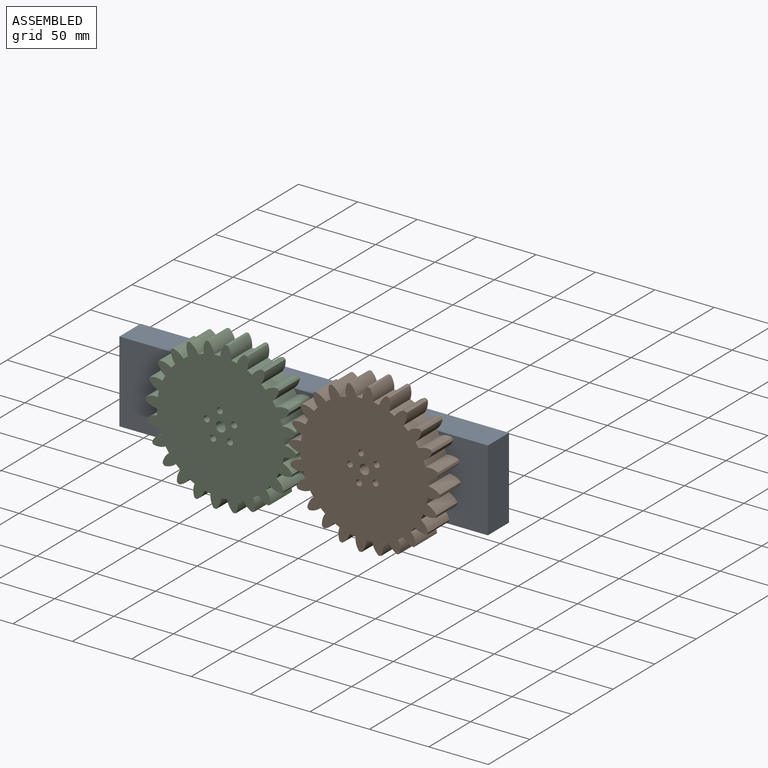
[diagram: assembled view]
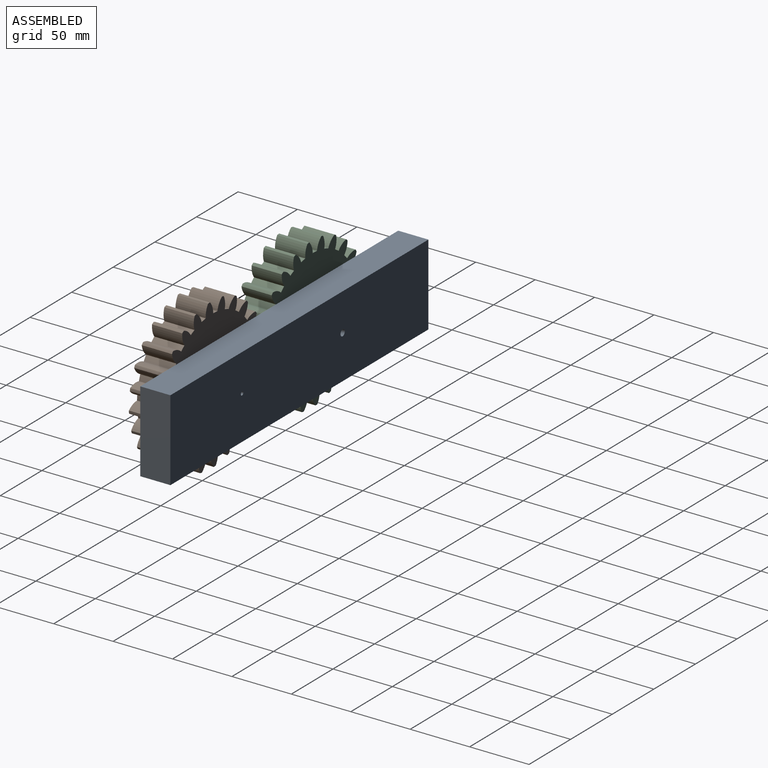
[diagram: assembled view, second angle]
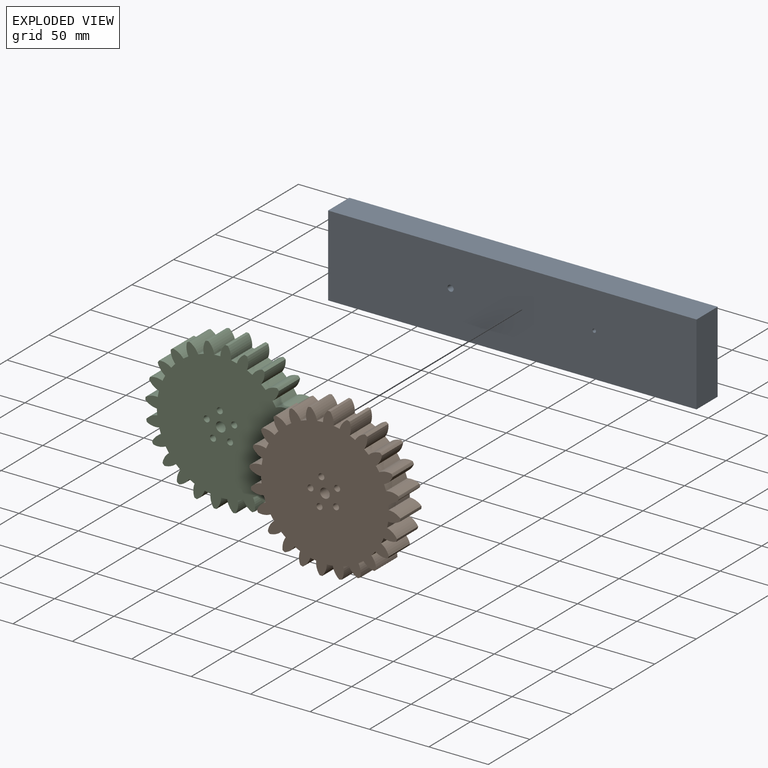
[diagram: exploded view]
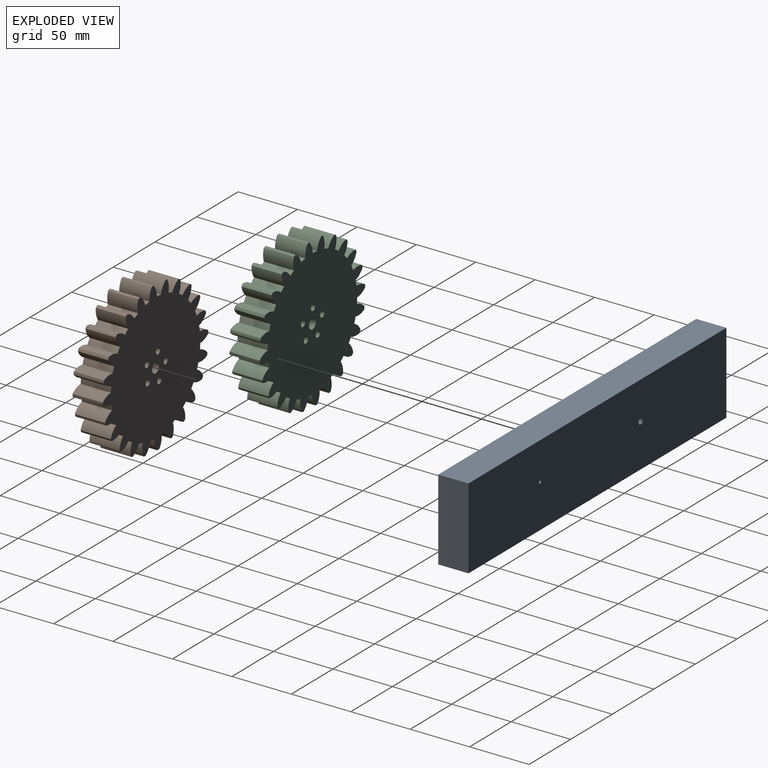
[diagram: exploded view, second angle]
ASSEMBLY  parts=3 mates=2
PART A: 8 faces, bbox 310x25.4x68.3 mm
  f0: plane 68.35x25.4mm, normal (1,0,0), area 1736mm2, adj f1,f4,f6,f7
  f1: plane 310.04x25.4mm, normal (0,0,1), area 7875.1mm2, adj f0,f2,f6,f7
  f2: plane 68.35x25.4mm, normal (-1,0,0), area 1736mm2, adj f1,f4,f6,f7
  f3: cylinder r=1.48mm len=25.4mm, axis (0,-1,0), area 236.8mm2, adj f6,f7
  f4: plane 310.04x25.4mm, normal (0,0,-1), area 7875.1mm2, adj f0,f2,f6,f7
  f5: cylinder r=2.57mm len=25.4mm, axis (0,-1,0), area 410.2mm2, adj f6,f7
  f6: plane 310.04x68.35mm, normal (0,1,0), area 21162.4mm2, adj f0,f1,f2,f3,f4,f5
  f7: plane 310.04x68.35mm, normal (0,-1,0), area 21162.4mm2, adj f0,f1,f2,f3,f4,f5
PART B: 152 faces, bbox 126.9x25.4x126.9 mm
  f0: cylinder r=14.33mm len=25.4mm, axis (0,1,0), area 129.1mm2, adj f1,f148,f150,f151
  f1: cylinder r=53.72mm len=25.4mm, axis (0,1,0), area 129.2mm2, adj f0,f2,f150,f151
  f2: cylinder r=14.33mm len=25.4mm, axis (0,1,0), area 129.1mm2, adj f1,f3,f150,f151
  f3: cylinder r=14.86mm len=25.4mm, axis (0,1,0), area 143.5mm2, adj f2,f4,f150,f151
  f4: cylinder r=10.85mm len=25.4mm, axis (0,1,0), area 59.3mm2, adj f3,f5,f150,f151
  f5: cylinder r=14.86mm len=25.4mm, axis (0,1,0), area 143.5mm2, adj f4,f6,f150,f151
  f6: cylinder r=14.33mm len=25.4mm, axis (0,1,0), area 129.1mm2, adj f5,f7,f150,f151
  f7: cylinder r=53.72mm len=25.4mm, axis (0,1,0), area 129.2mm2, adj f6,f8,f150,f151
  f8: cylinder r=14.33mm len=25.4mm, axis (0,1,0), area 129.1mm2, adj f7,f9,f150,f151
  f9: cylinder r=14.86mm len=25.4mm, axis (0,1,0), area 143.5mm2, adj f8,f10,f150,f151
  f10: cylinder r=10.85mm len=25.4mm, axis (0,1,0), area 59.3mm2, adj f9,f11,f150,f151
  f11: cylinder r=14.86mm len=25.4mm, axis (0,1,0), area 143.5mm2, adj f10,f12,f150,f151
  f12: cylinder r=14.33mm len=25.4mm, axis (0,1,0), area 129.1mm2, adj f11,f13,f150,f151
  f13: cylinder r=53.72mm len=25.4mm, axis (0,1,0), area 129.2mm2, adj f12,f14,f150,f151
  f14: cylinder r=14.33mm len=25.4mm, axis (0,1,0), area 129.1mm2, adj f13,f15,f150,f151
  f15: cylinder r=14.86mm len=25.4mm, axis (0,1,0), area 143.5mm2, adj f14,f16,f150,f151
  f16: cylinder r=10.85mm len=25.4mm, axis (0,1,0), area 59.3mm2, adj f15,f17,f150,f151
  f17: cylinder r=14.86mm len=25.4mm, axis (0,1,0), area 143.5mm2, adj f16,f18,f150,f151
  f18: cylinder r=14.33mm len=25.4mm, axis (0,1,0), area 129.1mm2, adj f17,f19,f150,f151
  f19: cylinder r=53.72mm len=25.4mm, axis (0,1,0), area 129.2mm2, adj f18,f20,f150,f151
  f20: cylinder r=14.33mm len=25.4mm, axis (0,1,0), area 129.1mm2, adj f19,f21,f150,f151
  f21: cylinder r=14.86mm len=25.4mm, axis (0,1,0), area 143.5mm2, adj f20,f22,f150,f151
  f22: cylinder r=10.85mm len=25.4mm, axis (0,1,0), area 59.3mm2, adj f21,f23,f150,f151
  f23: cylinder r=14.86mm len=25.4mm, axis (0,1,0), area 143.5mm2, adj f22,f24,f150,f151
  f24: cylinder r=14.33mm len=25.4mm, axis (0,1,0), area 129.1mm2, adj f23,f25,f150,f151
  f25: cylinder r=53.72mm len=25.4mm, axis (0,1,0), area 129.2mm2, adj f24,f26,f150,f151
  f26: cylinder r=14.33mm len=25.4mm, axis (0,1,0), area 129.1mm2, adj f25,f27,f150,f151
  f27: cylinder r=14.86mm len=25.4mm, axis (0,1,0), area 143.5mm2, adj f26,f28,f150,f151
  f28: cylinder r=10.85mm len=25.4mm, axis (0,1,0), area 59.3mm2, adj f27,f29,f150,f151
  f29: cylinder r=14.86mm len=25.4mm, axis (0,1,0), area 143.5mm2, adj f28,f30,f150,f151
  f30: cylinder r=14.33mm len=25.4mm, axis (0,1,0), area 129.1mm2, adj f29,f31,f150,f151
  f31: cylinder r=53.72mm len=25.4mm, axis (0,1,0), area 129.2mm2, adj f30,f32,f150,f151
  f32: cylinder r=14.33mm len=25.4mm, axis (0,1,0), area 129.1mm2, adj f31,f33,f150,f151
  f33: cylinder r=14.86mm len=25.4mm, axis (0,1,0), area 143.5mm2, adj f32,f34,f150,f151
  f34: cylinder r=10.85mm len=25.4mm, axis (0,1,0), area 59.3mm2, adj f33,f35,f150,f151
  f35: cylinder r=14.86mm len=25.4mm, axis (0,1,0), area 143.5mm2, adj f34,f36,f150,f151
  f36: cylinder r=14.33mm len=25.4mm, axis (0,1,0), area 129.1mm2, adj f35,f37,f150,f151
  f37: cylinder r=53.72mm len=25.4mm, axis (0,1,0), area 129.2mm2, adj f36,f38,f150,f151
  f38: cylinder r=14.33mm len=25.4mm, axis (0,1,0), area 129.1mm2, adj f37,f39,f150,f151
  f39: cylinder r=14.86mm len=25.4mm, axis (0,1,0), area 143.5mm2, adj f38,f40,f150,f151
  f40: cylinder r=10.85mm len=25.4mm, axis (0,1,0), area 59.3mm2, adj f39,f41,f150,f151
  f41: cylinder r=14.86mm len=25.4mm, axis (0,1,0), area 143.5mm2, adj f40,f42,f150,f151
  f42: cylinder r=14.33mm len=25.4mm, axis (0,1,0), area 129.1mm2, adj f41,f43,f150,f151
  f43: cylinder r=53.72mm len=25.4mm, axis (0,1,0), area 129.2mm2, adj f42,f44,f150,f151
  f44: cylinder r=14.33mm len=25.4mm, axis (0,1,0), area 129.1mm2, adj f43,f45,f150,f151
  f45: cylinder r=14.86mm len=25.4mm, axis (0,1,0), area 143.5mm2, adj f44,f46,f150,f151
  f46: cylinder r=10.85mm len=25.4mm, axis (0,1,0), area 59.3mm2, adj f45,f47,f150,f151
  f47: cylinder r=14.86mm len=25.4mm, axis (0,1,0), area 143.5mm2, adj f46,f48,f150,f151
  f48: cylinder r=14.33mm len=25.4mm, axis (0,1,0), area 129.1mm2, adj f47,f49,f150,f151
  f49: cylinder r=53.72mm len=25.4mm, axis (0,1,0), area 129.2mm2, adj f48,f50,f150,f151
  f50: cylinder r=14.33mm len=25.4mm, axis (0,1,0), area 129.1mm2, adj f49,f51,f150,f151
  f51: cylinder r=14.86mm len=25.4mm, axis (0,1,0), area 143.5mm2, adj f50,f52,f150,f151
  f52: cylinder r=10.85mm len=25.4mm, axis (0,1,0), area 59.3mm2, adj f51,f53,f150,f151
  f53: cylinder r=14.86mm len=25.4mm, axis (0,1,0), area 143.5mm2, adj f52,f54,f150,f151
  f54: cylinder r=14.33mm len=25.4mm, axis (0,1,0), area 129.1mm2, adj f53,f55,f150,f151
  f55: cylinder r=53.72mm len=25.4mm, axis (0,1,0), area 129.2mm2, adj f54,f56,f150,f151
  f56: cylinder r=14.33mm len=25.4mm, axis (0,1,0), area 129.1mm2, adj f55,f57,f150,f151
  f57: cylinder r=14.86mm len=25.4mm, axis (0,1,0), area 143.5mm2, adj f56,f58,f150,f151
  f58: cylinder r=10.85mm len=25.4mm, axis (0,1,0), area 59.3mm2, adj f57,f59,f150,f151
  f59: cylinder r=14.86mm len=25.4mm, axis (0,1,0), area 143.5mm2, adj f58,f60,f150,f151
  f60: cylinder r=14.33mm len=25.4mm, axis (0,1,0), area 129.1mm2, adj f59,f61,f150,f151
  f61: cylinder r=53.72mm len=25.4mm, axis (0,1,0), area 129.2mm2, adj f60,f62,f150,f151
  f62: cylinder r=14.33mm len=25.4mm, axis (0,1,0), area 129.1mm2, adj f61,f63,f150,f151
  f63: cylinder r=14.86mm len=25.4mm, axis (0,1,0), area 143.5mm2, adj f62,f64,f150,f151
  f64: cylinder r=10.85mm len=25.4mm, axis (0,1,0), area 59.3mm2, adj f63,f65,f150,f151
  f65: cylinder r=14.86mm len=25.4mm, axis (0,1,0), area 143.5mm2, adj f64,f66,f150,f151
  f66: cylinder r=14.33mm len=25.4mm, axis (0,1,0), area 129.1mm2, adj f65,f67,f150,f151
  f67: cylinder r=53.72mm len=25.4mm, axis (0,1,0), area 129.2mm2, adj f66,f68,f150,f151
  f68: cylinder r=14.33mm len=25.4mm, axis (0,1,0), area 129.1mm2, adj f67,f69,f150,f151
  f69: cylinder r=14.86mm len=25.4mm, axis (0,1,0), area 143.5mm2, adj f68,f70,f150,f151
  f70: cylinder r=10.85mm len=25.4mm, axis (0,1,0), area 59.3mm2, adj f69,f71,f150,f151
  f71: cylinder r=14.86mm len=25.4mm, axis (0,1,0), area 143.5mm2, adj f70,f72,f150,f151
  f72: cylinder r=14.33mm len=25.4mm, axis (0,1,0), area 129.1mm2, adj f71,f73,f150,f151
  f73: cylinder r=53.72mm len=25.4mm, axis (0,1,0), area 129.2mm2, adj f72,f74,f150,f151
  f74: cylinder r=14.33mm len=25.4mm, axis (0,1,0), area 129.1mm2, adj f73,f75,f150,f151
  f75: cylinder r=14.86mm len=25.4mm, axis (0,1,0), area 143.5mm2, adj f74,f76,f150,f151
  f76: cylinder r=10.85mm len=25.4mm, axis (0,1,0), area 59.3mm2, adj f75,f77,f150,f151
  f77: cylinder r=14.86mm len=25.4mm, axis (0,1,0), area 143.5mm2, adj f76,f78,f150,f151
  f78: cylinder r=14.33mm len=25.4mm, axis (0,1,0), area 129.1mm2, adj f77,f79,f150,f151
  f79: cylinder r=53.72mm len=25.4mm, axis (0,1,0), area 129.2mm2, adj f78,f80,f150,f151
  f80: cylinder r=14.33mm len=25.4mm, axis (0,1,0), area 129.1mm2, adj f79,f81,f150,f151
  f81: cylinder r=14.86mm len=25.4mm, axis (0,1,0), area 143.5mm2, adj f80,f82,f150,f151
  f82: cylinder r=10.85mm len=25.4mm, axis (0,1,0), area 59.3mm2, adj f81,f83,f150,f151
  f83: cylinder r=14.86mm len=25.4mm, axis (0,1,0), area 143.5mm2, adj f82,f84,f150,f151
  f84: cylinder r=14.33mm len=25.4mm, axis (0,1,0), area 129.1mm2, adj f83,f85,f150,f151
  f85: cylinder r=53.72mm len=25.4mm, axis (0,1,0), area 129.2mm2, adj f84,f86,f150,f151
  f86: cylinder r=14.33mm len=25.4mm, axis (0,1,0), area 129.1mm2, adj f85,f87,f150,f151
  f87: cylinder r=14.86mm len=25.4mm, axis (0,1,0), area 143.5mm2, adj f86,f88,f150,f151
  f88: cylinder r=10.85mm len=25.4mm, axis (0,1,0), area 59.3mm2, adj f87,f89,f150,f151
  f89: cylinder r=14.86mm len=25.4mm, axis (0,1,0), area 143.5mm2, adj f88,f90,f150,f151
  f90: cylinder r=14.33mm len=25.4mm, axis (0,1,0), area 129.1mm2, adj f89,f91,f150,f151
  f91: cylinder r=53.72mm len=25.4mm, axis (0,1,0), area 129.2mm2, adj f90,f92,f150,f151
  f92: cylinder r=14.33mm len=25.4mm, axis (0,1,0), area 129.1mm2, adj f91,f93,f150,f151
  f93: cylinder r=14.86mm len=25.4mm, axis (0,1,0), area 143.5mm2, adj f92,f94,f150,f151
  f94: cylinder r=10.85mm len=25.4mm, axis (0,1,0), area 59.3mm2, adj f93,f95,f150,f151
  f95: cylinder r=14.86mm len=25.4mm, axis (0,1,0), area 143.5mm2, adj f94,f96,f150,f151
  f96: cylinder r=14.33mm len=25.4mm, axis (0,1,0), area 129.1mm2, adj f95,f97,f150,f151
  f97: cylinder r=53.72mm len=25.4mm, axis (0,1,0), area 129.2mm2, adj f96,f98,f150,f151
  f98: cylinder r=14.33mm len=25.4mm, axis (0,1,0), area 129.1mm2, adj f97,f99,f150,f151
  f99: cylinder r=14.86mm len=25.4mm, axis (0,1,0), area 143.5mm2, adj f98,f100,f150,f151
  f100: cylinder r=10.85mm len=25.4mm, axis (0,1,0), area 59.3mm2, adj f99,f101,f150,f151
  f101: cylinder r=14.86mm len=25.4mm, axis (0,1,0), area 143.5mm2, adj f100,f102,f150,f151
  f102: cylinder r=14.33mm len=25.4mm, axis (0,1,0), area 129.1mm2, adj f101,f103,f150,f151
  f103: cylinder r=53.72mm len=25.4mm, axis (0,1,0), area 129.2mm2, adj f102,f104,f150,f151
  f104: cylinder r=14.33mm len=25.4mm, axis (0,1,0), area 129.1mm2, adj f103,f105,f150,f151
  f105: cylinder r=14.86mm len=25.4mm, axis (0,1,0), area 143.5mm2, adj f104,f106,f150,f151
  f106: cylinder r=10.85mm len=25.4mm, axis (0,1,0), area 59.3mm2, adj f105,f107,f150,f151
  f107: cylinder r=14.86mm len=25.4mm, axis (0,1,0), area 143.5mm2, adj f106,f108,f150,f151
  f108: cylinder r=14.33mm len=25.4mm, axis (0,1,0), area 129.1mm2, adj f107,f109,f150,f151
  f109: cylinder r=53.72mm len=25.4mm, axis (0,1,0), area 129.2mm2, adj f108,f110,f150,f151
  f110: cylinder r=14.33mm len=25.4mm, axis (0,1,0), area 129.1mm2, adj f109,f111,f150,f151
  f111: cylinder r=14.86mm len=25.4mm, axis (0,1,0), area 143.5mm2, adj f110,f112,f150,f151
  f112: cylinder r=10.85mm len=25.4mm, axis (0,1,0), area 59.3mm2, adj f111,f113,f150,f151
  f113: cylinder r=14.86mm len=25.4mm, axis (0,1,0), area 143.5mm2, adj f112,f114,f150,f151
  f114: cylinder r=14.33mm len=25.4mm, axis (0,1,0), area 129.1mm2, adj f113,f115,f150,f151
  f115: cylinder r=53.72mm len=25.4mm, axis (0,1,0), area 129.2mm2, adj f114,f116,f150,f151
  f116: cylinder r=14.33mm len=25.4mm, axis (0,1,0), area 129.1mm2, adj f115,f117,f150,f151
  f117: cylinder r=14.86mm len=25.4mm, axis (0,1,0), area 143.5mm2, adj f116,f118,f150,f151
  f118: cylinder r=10.85mm len=25.4mm, axis (0,1,0), area 59.3mm2, adj f117,f119,f150,f151
  f119: cylinder r=14.86mm len=25.4mm, axis (0,1,0), area 143.5mm2, adj f118,f120,f150,f151
  f120: cylinder r=14.33mm len=25.4mm, axis (0,1,0), area 129.1mm2, adj f119,f121,f150,f151
  f121: cylinder r=53.72mm len=25.4mm, axis (0,1,0), area 129.2mm2, adj f120,f122,f150,f151
  f122: cylinder r=14.33mm len=25.4mm, axis (0,1,0), area 129.1mm2, adj f121,f123,f150,f151
  f123: cylinder r=14.86mm len=25.4mm, axis (0,1,0), area 143.5mm2, adj f122,f124,f150,f151
  f124: cylinder r=10.85mm len=25.4mm, axis (0,1,0), area 59.3mm2, adj f123,f125,f150,f151
  f125: cylinder r=14.86mm len=25.4mm, axis (0,1,0), area 143.5mm2, adj f124,f126,f150,f151
  f126: cylinder r=14.33mm len=25.4mm, axis (0,1,0), area 129.1mm2, adj f125,f127,f150,f151
  f127: cylinder r=53.72mm len=25.4mm, axis (0,1,0), area 129.2mm2, adj f126,f128,f150,f151
  f128: cylinder r=14.33mm len=25.4mm, axis (0,1,0), area 129.1mm2, adj f127,f129,f150,f151
  f129: cylinder r=14.86mm len=25.4mm, axis (0,1,0), area 143.5mm2, adj f128,f130,f150,f151
  f130: cylinder r=10.85mm len=25.4mm, axis (0,1,0), area 59.3mm2, adj f129,f131,f150,f151
  f131: cylinder r=14.86mm len=25.4mm, axis (0,1,0), area 143.5mm2, adj f130,f132,f150,f151
  f132: cylinder r=14.33mm len=25.4mm, axis (0,1,0), area 129.1mm2, adj f131,f133,f150,f151
  f133: cylinder r=53.72mm len=25.4mm, axis (0,1,0), area 129.2mm2, adj f132,f134,f150,f151
  f134: cylinder r=14.33mm len=25.4mm, axis (0,1,0), area 129.1mm2, adj f133,f135,f150,f151
  f135: cylinder r=14.86mm len=25.4mm, axis (0,1,0), area 143.5mm2, adj f134,f136,f150,f151
  f136: cylinder r=10.85mm len=25.4mm, axis (0,1,0), area 59.3mm2, adj f135,f137,f150,f151
  f137: cylinder r=14.86mm len=25.4mm, axis (0,1,0), area 143.5mm2, adj f136,f138,f150,f151
  f138: cylinder r=14.33mm len=25.4mm, axis (0,1,0), area 129.1mm2, adj f137,f139,f150,f151
  f139: cylinder r=53.72mm len=25.4mm, axis (0,1,0), area 129.2mm2, adj f138,f140,f150,f151
  f140: cylinder r=14.33mm len=25.4mm, axis (0,1,0), area 129.1mm2, adj f139,f141,f150,f151
  f141: cylinder r=14.86mm len=25.4mm, axis (0,1,0), area 143.5mm2, adj f140,f142,f150,f151
  f142: cylinder r=10.85mm len=25.4mm, axis (0,1,0), area 59.3mm2, adj f141,f148,f150,f151
  f143: cylinder r=2.54mm len=25.4mm, axis (0,1,0), area 405.4mm2, adj f150,f151
  f144: cylinder r=2.54mm len=25.4mm, axis (0,1,0), area 405.4mm2, adj f150,f151
  f145: cylinder r=2.54mm len=25.4mm, axis (0,1,0), area 405.4mm2, adj f150,f151
  f146: cylinder r=2.54mm len=25.4mm, axis (0,1,0), area 405.4mm2, adj f150,f151
  f147: cylinder r=4.1mm len=25.4mm, axis (0,1,0), area 654.9mm2, adj f150,f151
  f148: cylinder r=14.86mm len=25.4mm, axis (0,1,0), area 143.5mm2, adj f0,f142,f150,f151
  f149: cylinder r=2.54mm len=25.4mm, axis (0,1,0), area 405.4mm2, adj f150,f151
  f150: plane 126.88x126.88mm, normal (0,-1,0), area 10567.1mm2, adj f0,f1,f2,f3,f4,f5,f6,f7
  f151: plane 126.88x126.88mm, normal (0,1,0), area 10567.1mm2, adj f0,f1,f2,f3,f4,f5,f6,f7
PART C: 152 faces, bbox 126.9x25.4x126.9 mm
  f0: cylinder r=14.33mm len=25.4mm, axis (0,1,0), area 129.1mm2, adj f1,f148,f150,f151
  f1: cylinder r=53.72mm len=25.4mm, axis (0,1,0), area 129.2mm2, adj f0,f2,f150,f151
  f2: cylinder r=14.33mm len=25.4mm, axis (0,1,0), area 129.1mm2, adj f1,f3,f150,f151
  f3: cylinder r=14.86mm len=25.4mm, axis (0,1,0), area 143.5mm2, adj f2,f4,f150,f151
  f4: cylinder r=10.85mm len=25.4mm, axis (0,1,0), area 59.3mm2, adj f3,f5,f150,f151
  f5: cylinder r=14.86mm len=25.4mm, axis (0,1,0), area 143.5mm2, adj f4,f6,f150,f151
  f6: cylinder r=14.33mm len=25.4mm, axis (0,1,0), area 129.1mm2, adj f5,f7,f150,f151
  f7: cylinder r=53.72mm len=25.4mm, axis (0,1,0), area 129.2mm2, adj f6,f8,f150,f151
  f8: cylinder r=14.33mm len=25.4mm, axis (0,1,0), area 129.1mm2, adj f7,f9,f150,f151
  f9: cylinder r=14.86mm len=25.4mm, axis (0,1,0), area 143.5mm2, adj f8,f10,f150,f151
  f10: cylinder r=10.85mm len=25.4mm, axis (0,1,0), area 59.3mm2, adj f9,f11,f150,f151
  f11: cylinder r=14.86mm len=25.4mm, axis (0,1,0), area 143.5mm2, adj f10,f12,f150,f151
  f12: cylinder r=14.33mm len=25.4mm, axis (0,1,0), area 129.1mm2, adj f11,f13,f150,f151
  f13: cylinder r=53.72mm len=25.4mm, axis (0,1,0), area 129.2mm2, adj f12,f14,f150,f151
  f14: cylinder r=14.33mm len=25.4mm, axis (0,1,0), area 129.1mm2, adj f13,f15,f150,f151
  f15: cylinder r=14.86mm len=25.4mm, axis (0,1,0), area 143.5mm2, adj f14,f16,f150,f151
  f16: cylinder r=10.85mm len=25.4mm, axis (0,1,0), area 59.3mm2, adj f15,f17,f150,f151
  f17: cylinder r=14.86mm len=25.4mm, axis (0,1,0), area 143.5mm2, adj f16,f18,f150,f151
  f18: cylinder r=14.33mm len=25.4mm, axis (0,1,0), area 129.1mm2, adj f17,f19,f150,f151
  f19: cylinder r=53.72mm len=25.4mm, axis (0,1,0), area 129.2mm2, adj f18,f20,f150,f151
  f20: cylinder r=14.33mm len=25.4mm, axis (0,1,0), area 129.1mm2, adj f19,f21,f150,f151
  f21: cylinder r=14.86mm len=25.4mm, axis (0,1,0), area 143.5mm2, adj f20,f22,f150,f151
  f22: cylinder r=10.85mm len=25.4mm, axis (0,1,0), area 59.3mm2, adj f21,f23,f150,f151
  f23: cylinder r=14.86mm len=25.4mm, axis (0,1,0), area 143.5mm2, adj f22,f24,f150,f151
  f24: cylinder r=14.33mm len=25.4mm, axis (0,1,0), area 129.1mm2, adj f23,f25,f150,f151
  f25: cylinder r=53.72mm len=25.4mm, axis (0,1,0), area 129.2mm2, adj f24,f26,f150,f151
  f26: cylinder r=14.33mm len=25.4mm, axis (0,1,0), area 129.1mm2, adj f25,f27,f150,f151
  f27: cylinder r=14.86mm len=25.4mm, axis (0,1,0), area 143.5mm2, adj f26,f28,f150,f151
  f28: cylinder r=10.85mm len=25.4mm, axis (0,1,0), area 59.3mm2, adj f27,f29,f150,f151
  f29: cylinder r=14.86mm len=25.4mm, axis (0,1,0), area 143.5mm2, adj f28,f30,f150,f151
  f30: cylinder r=14.33mm len=25.4mm, axis (0,1,0), area 129.1mm2, adj f29,f31,f150,f151
  f31: cylinder r=53.72mm len=25.4mm, axis (0,1,0), area 129.2mm2, adj f30,f32,f150,f151
  f32: cylinder r=14.33mm len=25.4mm, axis (0,1,0), area 129.1mm2, adj f31,f33,f150,f151
  f33: cylinder r=14.86mm len=25.4mm, axis (0,1,0), area 143.5mm2, adj f32,f34,f150,f151
  f34: cylinder r=10.85mm len=25.4mm, axis (0,1,0), area 59.3mm2, adj f33,f35,f150,f151
  f35: cylinder r=14.86mm len=25.4mm, axis (0,1,0), area 143.5mm2, adj f34,f36,f150,f151
  f36: cylinder r=14.33mm len=25.4mm, axis (0,1,0), area 129.1mm2, adj f35,f37,f150,f151
  f37: cylinder r=53.72mm len=25.4mm, axis (0,1,0), area 129.2mm2, adj f36,f38,f150,f151
  f38: cylinder r=14.33mm len=25.4mm, axis (0,1,0), area 129.1mm2, adj f37,f39,f150,f151
  f39: cylinder r=14.86mm len=25.4mm, axis (0,1,0), area 143.5mm2, adj f38,f40,f150,f151
  f40: cylinder r=10.85mm len=25.4mm, axis (0,1,0), area 59.3mm2, adj f39,f41,f150,f151
  f41: cylinder r=14.86mm len=25.4mm, axis (0,1,0), area 143.5mm2, adj f40,f42,f150,f151
  f42: cylinder r=14.33mm len=25.4mm, axis (0,1,0), area 129.1mm2, adj f41,f43,f150,f151
  f43: cylinder r=53.72mm len=25.4mm, axis (0,1,0), area 129.2mm2, adj f42,f44,f150,f151
  f44: cylinder r=14.33mm len=25.4mm, axis (0,1,0), area 129.1mm2, adj f43,f45,f150,f151
  f45: cylinder r=14.86mm len=25.4mm, axis (0,1,0), area 143.5mm2, adj f44,f46,f150,f151
  f46: cylinder r=10.85mm len=25.4mm, axis (0,1,0), area 59.3mm2, adj f45,f47,f150,f151
  f47: cylinder r=14.86mm len=25.4mm, axis (0,1,0), area 143.5mm2, adj f46,f48,f150,f151
  f48: cylinder r=14.33mm len=25.4mm, axis (0,1,0), area 129.1mm2, adj f47,f49,f150,f151
  f49: cylinder r=53.72mm len=25.4mm, axis (0,1,0), area 129.2mm2, adj f48,f50,f150,f151
  f50: cylinder r=14.33mm len=25.4mm, axis (0,1,0), area 129.1mm2, adj f49,f51,f150,f151
  f51: cylinder r=14.86mm len=25.4mm, axis (0,1,0), area 143.5mm2, adj f50,f52,f150,f151
  f52: cylinder r=10.85mm len=25.4mm, axis (0,1,0), area 59.3mm2, adj f51,f53,f150,f151
  f53: cylinder r=14.86mm len=25.4mm, axis (0,1,0), area 143.5mm2, adj f52,f54,f150,f151
  f54: cylinder r=14.33mm len=25.4mm, axis (0,1,0), area 129.1mm2, adj f53,f55,f150,f151
  f55: cylinder r=53.72mm len=25.4mm, axis (0,1,0), area 129.2mm2, adj f54,f56,f150,f151
  f56: cylinder r=14.33mm len=25.4mm, axis (0,1,0), area 129.1mm2, adj f55,f57,f150,f151
  f57: cylinder r=14.86mm len=25.4mm, axis (0,1,0), area 143.5mm2, adj f56,f58,f150,f151
  f58: cylinder r=10.85mm len=25.4mm, axis (0,1,0), area 59.3mm2, adj f57,f59,f150,f151
  f59: cylinder r=14.86mm len=25.4mm, axis (0,1,0), area 143.5mm2, adj f58,f60,f150,f151
  f60: cylinder r=14.33mm len=25.4mm, axis (0,1,0), area 129.1mm2, adj f59,f61,f150,f151
  f61: cylinder r=53.72mm len=25.4mm, axis (0,1,0), area 129.2mm2, adj f60,f62,f150,f151
  f62: cylinder r=14.33mm len=25.4mm, axis (0,1,0), area 129.1mm2, adj f61,f63,f150,f151
  f63: cylinder r=14.86mm len=25.4mm, axis (0,1,0), area 143.5mm2, adj f62,f64,f150,f151
  f64: cylinder r=10.85mm len=25.4mm, axis (0,1,0), area 59.3mm2, adj f63,f65,f150,f151
  f65: cylinder r=14.86mm len=25.4mm, axis (0,1,0), area 143.5mm2, adj f64,f66,f150,f151
  f66: cylinder r=14.33mm len=25.4mm, axis (0,1,0), area 129.1mm2, adj f65,f67,f150,f151
  f67: cylinder r=53.72mm len=25.4mm, axis (0,1,0), area 129.2mm2, adj f66,f68,f150,f151
  f68: cylinder r=14.33mm len=25.4mm, axis (0,1,0), area 129.1mm2, adj f67,f69,f150,f151
  f69: cylinder r=14.86mm len=25.4mm, axis (0,1,0), area 143.5mm2, adj f68,f70,f150,f151
  f70: cylinder r=10.85mm len=25.4mm, axis (0,1,0), area 59.3mm2, adj f69,f71,f150,f151
  f71: cylinder r=14.86mm len=25.4mm, axis (0,1,0), area 143.5mm2, adj f70,f72,f150,f151
  f72: cylinder r=14.33mm len=25.4mm, axis (0,1,0), area 129.1mm2, adj f71,f73,f150,f151
  f73: cylinder r=53.72mm len=25.4mm, axis (0,1,0), area 129.2mm2, adj f72,f74,f150,f151
  f74: cylinder r=14.33mm len=25.4mm, axis (0,1,0), area 129.1mm2, adj f73,f75,f150,f151
  f75: cylinder r=14.86mm len=25.4mm, axis (0,1,0), area 143.5mm2, adj f74,f76,f150,f151
  f76: cylinder r=10.85mm len=25.4mm, axis (0,1,0), area 59.3mm2, adj f75,f77,f150,f151
  f77: cylinder r=14.86mm len=25.4mm, axis (0,1,0), area 143.5mm2, adj f76,f78,f150,f151
  f78: cylinder r=14.33mm len=25.4mm, axis (0,1,0), area 129.1mm2, adj f77,f79,f150,f151
  f79: cylinder r=53.72mm len=25.4mm, axis (0,1,0), area 129.2mm2, adj f78,f80,f150,f151
  f80: cylinder r=14.33mm len=25.4mm, axis (0,1,0), area 129.1mm2, adj f79,f81,f150,f151
  f81: cylinder r=14.86mm len=25.4mm, axis (0,1,0), area 143.5mm2, adj f80,f82,f150,f151
  f82: cylinder r=10.85mm len=25.4mm, axis (0,1,0), area 59.3mm2, adj f81,f83,f150,f151
  f83: cylinder r=14.86mm len=25.4mm, axis (0,1,0), area 143.5mm2, adj f82,f84,f150,f151
  f84: cylinder r=14.33mm len=25.4mm, axis (0,1,0), area 129.1mm2, adj f83,f85,f150,f151
  f85: cylinder r=53.72mm len=25.4mm, axis (0,1,0), area 129.2mm2, adj f84,f86,f150,f151
  f86: cylinder r=14.33mm len=25.4mm, axis (0,1,0), area 129.1mm2, adj f85,f87,f150,f151
  f87: cylinder r=14.86mm len=25.4mm, axis (0,1,0), area 143.5mm2, adj f86,f88,f150,f151
  f88: cylinder r=10.85mm len=25.4mm, axis (0,1,0), area 59.3mm2, adj f87,f89,f150,f151
  f89: cylinder r=14.86mm len=25.4mm, axis (0,1,0), area 143.5mm2, adj f88,f90,f150,f151
  f90: cylinder r=14.33mm len=25.4mm, axis (0,1,0), area 129.1mm2, adj f89,f91,f150,f151
  f91: cylinder r=53.72mm len=25.4mm, axis (0,1,0), area 129.2mm2, adj f90,f92,f150,f151
  f92: cylinder r=14.33mm len=25.4mm, axis (0,1,0), area 129.1mm2, adj f91,f93,f150,f151
  f93: cylinder r=14.86mm len=25.4mm, axis (0,1,0), area 143.5mm2, adj f92,f94,f150,f151
  f94: cylinder r=10.85mm len=25.4mm, axis (0,1,0), area 59.3mm2, adj f93,f95,f150,f151
  f95: cylinder r=14.86mm len=25.4mm, axis (0,1,0), area 143.5mm2, adj f94,f96,f150,f151
  f96: cylinder r=14.33mm len=25.4mm, axis (0,1,0), area 129.1mm2, adj f95,f97,f150,f151
  f97: cylinder r=53.72mm len=25.4mm, axis (0,1,0), area 129.2mm2, adj f96,f98,f150,f151
  f98: cylinder r=14.33mm len=25.4mm, axis (0,1,0), area 129.1mm2, adj f97,f99,f150,f151
  f99: cylinder r=14.86mm len=25.4mm, axis (0,1,0), area 143.5mm2, adj f98,f100,f150,f151
  f100: cylinder r=10.85mm len=25.4mm, axis (0,1,0), area 59.3mm2, adj f99,f101,f150,f151
  f101: cylinder r=14.86mm len=25.4mm, axis (0,1,0), area 143.5mm2, adj f100,f102,f150,f151
  f102: cylinder r=14.33mm len=25.4mm, axis (0,1,0), area 129.1mm2, adj f101,f103,f150,f151
  f103: cylinder r=53.72mm len=25.4mm, axis (0,1,0), area 129.2mm2, adj f102,f104,f150,f151
  f104: cylinder r=14.33mm len=25.4mm, axis (0,1,0), area 129.1mm2, adj f103,f105,f150,f151
  f105: cylinder r=14.86mm len=25.4mm, axis (0,1,0), area 143.5mm2, adj f104,f106,f150,f151
  f106: cylinder r=10.85mm len=25.4mm, axis (0,1,0), area 59.3mm2, adj f105,f107,f150,f151
  f107: cylinder r=14.86mm len=25.4mm, axis (0,1,0), area 143.5mm2, adj f106,f108,f150,f151
  f108: cylinder r=14.33mm len=25.4mm, axis (0,1,0), area 129.1mm2, adj f107,f109,f150,f151
  f109: cylinder r=53.72mm len=25.4mm, axis (0,1,0), area 129.2mm2, adj f108,f110,f150,f151
  f110: cylinder r=14.33mm len=25.4mm, axis (0,1,0), area 129.1mm2, adj f109,f111,f150,f151
  f111: cylinder r=14.86mm len=25.4mm, axis (0,1,0), area 143.5mm2, adj f110,f112,f150,f151
  f112: cylinder r=10.85mm len=25.4mm, axis (0,1,0), area 59.3mm2, adj f111,f113,f150,f151
  f113: cylinder r=14.86mm len=25.4mm, axis (0,1,0), area 143.5mm2, adj f112,f114,f150,f151
  f114: cylinder r=14.33mm len=25.4mm, axis (0,1,0), area 129.1mm2, adj f113,f115,f150,f151
  f115: cylinder r=53.72mm len=25.4mm, axis (0,1,0), area 129.2mm2, adj f114,f116,f150,f151
  f116: cylinder r=14.33mm len=25.4mm, axis (0,1,0), area 129.1mm2, adj f115,f117,f150,f151
  f117: cylinder r=14.86mm len=25.4mm, axis (0,1,0), area 143.5mm2, adj f116,f118,f150,f151
  f118: cylinder r=10.85mm len=25.4mm, axis (0,1,0), area 59.3mm2, adj f117,f119,f150,f151
  f119: cylinder r=14.86mm len=25.4mm, axis (0,1,0), area 143.5mm2, adj f118,f120,f150,f151
  f120: cylinder r=14.33mm len=25.4mm, axis (0,1,0), area 129.1mm2, adj f119,f121,f150,f151
  f121: cylinder r=53.72mm len=25.4mm, axis (0,1,0), area 129.2mm2, adj f120,f122,f150,f151
  f122: cylinder r=14.33mm len=25.4mm, axis (0,1,0), area 129.1mm2, adj f121,f123,f150,f151
  f123: cylinder r=14.86mm len=25.4mm, axis (0,1,0), area 143.5mm2, adj f122,f124,f150,f151
  f124: cylinder r=10.85mm len=25.4mm, axis (0,1,0), area 59.3mm2, adj f123,f125,f150,f151
  f125: cylinder r=14.86mm len=25.4mm, axis (0,1,0), area 143.5mm2, adj f124,f126,f150,f151
  f126: cylinder r=14.33mm len=25.4mm, axis (0,1,0), area 129.1mm2, adj f125,f127,f150,f151
  f127: cylinder r=53.72mm len=25.4mm, axis (0,1,0), area 129.2mm2, adj f126,f128,f150,f151
  f128: cylinder r=14.33mm len=25.4mm, axis (0,1,0), area 129.1mm2, adj f127,f129,f150,f151
  f129: cylinder r=14.86mm len=25.4mm, axis (0,1,0), area 143.5mm2, adj f128,f130,f150,f151
  f130: cylinder r=10.85mm len=25.4mm, axis (0,1,0), area 59.3mm2, adj f129,f131,f150,f151
  f131: cylinder r=14.86mm len=25.4mm, axis (0,1,0), area 143.5mm2, adj f130,f132,f150,f151
  f132: cylinder r=14.33mm len=25.4mm, axis (0,1,0), area 129.1mm2, adj f131,f133,f150,f151
  f133: cylinder r=53.72mm len=25.4mm, axis (0,1,0), area 129.2mm2, adj f132,f134,f150,f151
  f134: cylinder r=14.33mm len=25.4mm, axis (0,1,0), area 129.1mm2, adj f133,f135,f150,f151
  f135: cylinder r=14.86mm len=25.4mm, axis (0,1,0), area 143.5mm2, adj f134,f136,f150,f151
  f136: cylinder r=10.85mm len=25.4mm, axis (0,1,0), area 59.3mm2, adj f135,f137,f150,f151
  f137: cylinder r=14.86mm len=25.4mm, axis (0,1,0), area 143.5mm2, adj f136,f138,f150,f151
  f138: cylinder r=14.33mm len=25.4mm, axis (0,1,0), area 129.1mm2, adj f137,f139,f150,f151
  f139: cylinder r=53.72mm len=25.4mm, axis (0,1,0), area 129.2mm2, adj f138,f140,f150,f151
  f140: cylinder r=14.33mm len=25.4mm, axis (0,1,0), area 129.1mm2, adj f139,f141,f150,f151
  f141: cylinder r=14.86mm len=25.4mm, axis (0,1,0), area 143.5mm2, adj f140,f142,f150,f151
  f142: cylinder r=10.85mm len=25.4mm, axis (0,1,0), area 59.3mm2, adj f141,f148,f150,f151
  f143: cylinder r=2.54mm len=25.4mm, axis (0,1,0), area 405.4mm2, adj f150,f151
  f144: cylinder r=2.54mm len=25.4mm, axis (0,1,0), area 405.4mm2, adj f150,f151
  f145: cylinder r=2.54mm len=25.4mm, axis (0,1,0), area 405.4mm2, adj f150,f151
  f146: cylinder r=2.54mm len=25.4mm, axis (0,1,0), area 405.4mm2, adj f150,f151
  f147: cylinder r=4.1mm len=25.4mm, axis (0,1,0), area 654.9mm2, adj f150,f151
  f148: cylinder r=14.86mm len=25.4mm, axis (0,1,0), area 143.5mm2, adj f0,f142,f150,f151
  f149: cylinder r=2.54mm len=25.4mm, axis (0,1,0), area 405.4mm2, adj f150,f151
  f150: plane 126.88x126.88mm, normal (0,-1,0), area 10567.1mm2, adj f0,f1,f2,f3,f4,f5,f6,f7
  f151: plane 126.88x126.88mm, normal (0,1,0), area 10567.1mm2, adj f0,f1,f2,f3,f4,f5,f6,f7
PLACE A t=(-32.41,0,30.31)mm fixed
PLACE B rot(axis=(0,-1,0),158.2deg) t=(200.43,0,-14.56)mm
PLACE C rot(axis=(0,1,0),68.2deg) t=(-32.41,0,30.31)mm
MATE revolute B.f1 <-> A.f3  axis (0,-1,0) through (88.43,-25.4,30.31)mm
MATE revolute C.f1 <-> A.f5  axis (0,-1,0) through (-32.41,-25.4,30.31)mm
